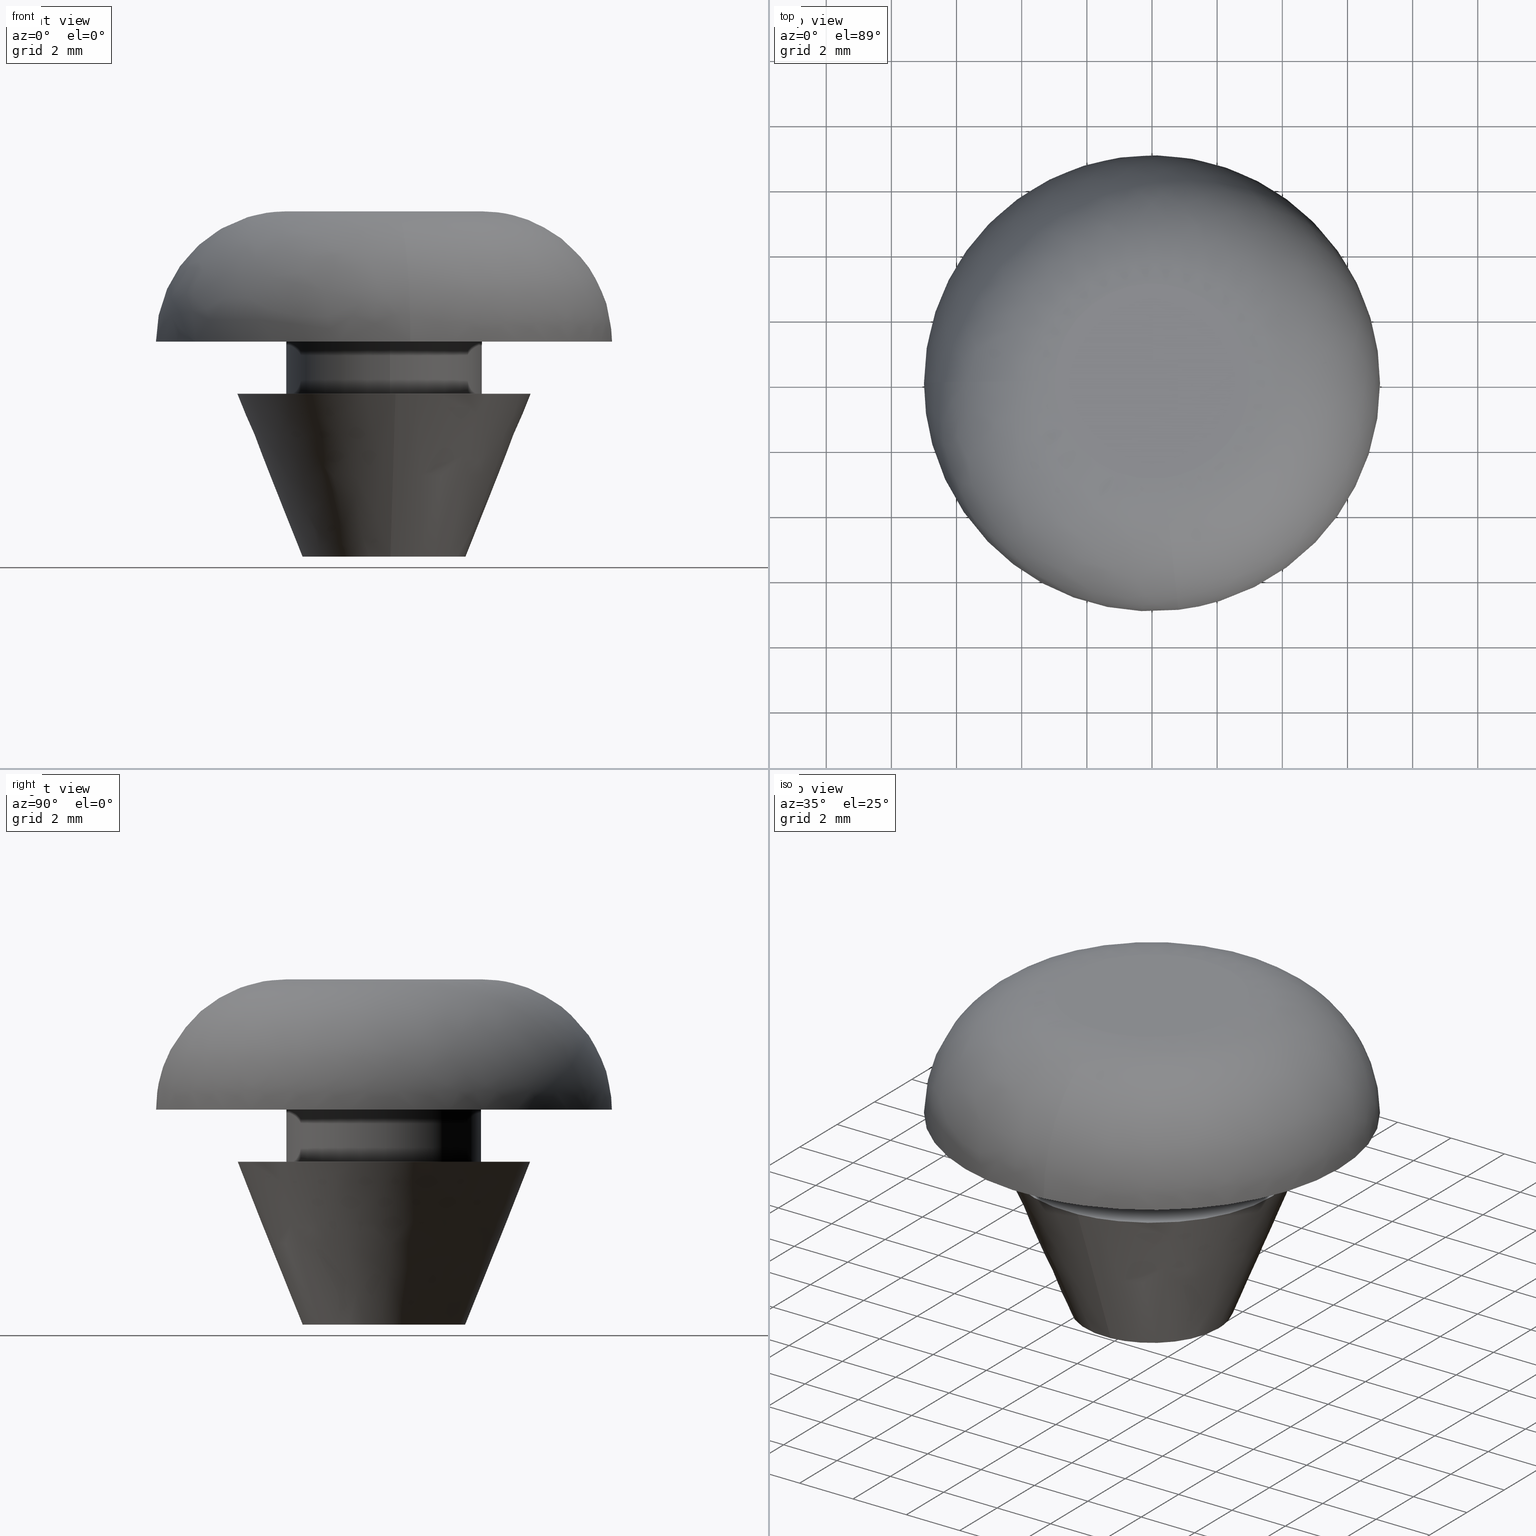
[diagram: canonical four-view strip — front | top / right | iso, engineering-drawing reading convention]
A machine part, canonical four-view strip (front | top / right | iso — engineering-drawing reading convention). The complete STEP part file that produces these views, byte-faithful:
ISO-10303-21;
HEADER;
/****************************************************************
 * Generated by software with PDE/Lib inside                    *
 * PDElib Version 4.4.1-0003, patched  Thursday August 19 11:58 *
 * International Technegroup Inc. (www.iti-oh.com)              *
 ****************************************************************/
FILE_DESCRIPTION((''),'2;1');
FILE_NAME('','2005-12-15T09:45:20',(''),(''),'','CADfix','');
FILE_SCHEMA(('AUTOMOTIVE_DESIGN'));
ENDSEC;
DATA;
#5=APPLICATION_CONTEXT('automotive design');
#6=APPLICATION_PROTOCOL_DEFINITION('Draft International Standard','automotive_design',1998,#5);
#7=PRODUCT_CONTEXT('None',#5,'mechanical');
#8=PRODUCT('cushion','','None',(#7));
#9=PRODUCT_RELATED_PRODUCT_CATEGORY('part','description',(#8));
#10=PRODUCT_DEFINITION_FORMATION('None','None',#8);
#11=PRODUCT_DEFINITION_CONTEXT('part definition',#5,'design');
#12=PRODUCT_DEFINITION('None','None',#10,#11);
#18=(NAMED_UNIT(*)PLANE_ANGLE_UNIT()SI_UNIT($,.RADIAN.));
#19=DIMENSIONAL_EXPONENTS(0.0,0.0,0.0,0.0,0.0,0.0,0.0);
#20=PLANE_ANGLE_MEASURE_WITH_UNIT(PLANE_ANGLE_MEASURE(0.017453292500000),#18);
#24=(CONVERSION_BASED_UNIT('DEGREE',#20)NAMED_UNIT(#19)PLANE_ANGLE_UNIT());
#28=(NAMED_UNIT(*)SI_UNIT($,.STERADIAN.)SOLID_ANGLE_UNIT());
#32=(LENGTH_UNIT()NAMED_UNIT(*)SI_UNIT(.MILLI.,.METRE.));
#34=UNCERTAINTY_MEASURE_WITH_UNIT(LENGTH_MEASURE(0.001000000000000),#32,'DISTANCE_ACCURACY_VALUE','');
#36=(GEOMETRIC_REPRESENTATION_CONTEXT(3)GLOBAL_UNCERTAINTY_ASSIGNED_CONTEXT((#34))GLOBAL_UNIT_ASSIGNED_CONTEXT((#24,#28,#32))REPRESENTATION_CONTEXT('None','None'));
#37=AXIS2_PLACEMENT_3D('',#38,#39,#40);
#38=CARTESIAN_POINT('',(0.0,0.0,0.0));
#39=DIRECTION('',(0.0,0.0,1.0));
#40=DIRECTION('',(1.0,0.0,0.0));
#41=ADVANCED_BREP_SHAPE_REPRESENTATION('',(#37,#915),#36);
#42=PRODUCT_DEFINITION_SHAPE('','',#12);
#43=SHAPE_DEFINITION_REPRESENTATION(#42,#41);
#44=CARTESIAN_POINT('',(0.236068469313517,-1.986019052727332,6.765000000000002));
#45=CARTESIAN_POINT('',(0.179229457275955,-1.992775230897211,6.765000000000001));
#46=CARTESIAN_POINT('',(0.122097079069714,-1.996269596843733,6.765000000000001));
#47=CARTESIAN_POINT('',(-1.874172517774020,-2.118366675913447,6.765000000000002));
#48=CARTESIAN_POINT('',(-1.996269596843733,-0.122097079069714,6.765000000000001));
#49=CARTESIAN_POINT('',(-2.118366675913447,1.874172517774020,6.765000000000002));
#50=CARTESIAN_POINT('',(-0.122097079069714,1.996269596843733,6.765000000000001));
#51=CARTESIAN_POINT('',(0.236068469313517,-1.986019052727332,-0.169125000000000));
#52=CARTESIAN_POINT('',(0.179229457275955,-1.992775230897211,-0.169125000000000));
#53=CARTESIAN_POINT('',(0.122097079069714,-1.996269596843733,-0.169125000000000));
#54=CARTESIAN_POINT('',(-1.874172517774020,-2.118366675913447,-0.169125000000000));
#55=CARTESIAN_POINT('',(-1.996269596843733,-0.122097079069714,-0.169125000000000));
#56=CARTESIAN_POINT('',(-2.118366675913447,1.874172517774020,-0.169125000000000));
#57=CARTESIAN_POINT('',(-0.122097079069714,1.996269596843733,-0.169125000000000));
#65=(BOUNDED_SURFACE()B_SPLINE_SURFACE(2,1,((#44,#51),(#45,#52),(#46,#53),(#47,#54),(#48,#55),(#49,#56),(#50,#57)),.UNSPECIFIED.,.F.,.F.,.U.)B_SPLINE_SURFACE_WITH_KNOTS((3,2,2,3),(2,2),(0.0,0.132548339959391,3.446256838944149,6.759965337928908),(0.0,6.934125000000002),.UNSPECIFIED.)GEOMETRIC_REPRESENTATION_ITEM()RATIONAL_B_SPLINE_SURFACE(((0.977505800795127,0.977505800795127),(0.988284271247462,0.988284271247462),(1.0,1.0),(0.707106781186548,0.707106781186548),(1.0,1.0),(0.707106781186548,0.707106781186548),(1.0,1.0)))REPRESENTATION_ITEM('')SURFACE());
#66=CARTESIAN_POINT('',(0.236068469324997,-1.986019052725968,6.599999999999999));
#67=VERTEX_POINT('',#66);
#68=CARTESIAN_POINT('',(-2.0,0.0,6.600000000000000));
#69=VERTEX_POINT('',#68);
#70=CARTESIAN_POINT('',(0.236068469324997,-1.986019052725968,6.599999999999999));
#71=CARTESIAN_POINT('',(0.118448239315422,-2.000000000000000,6.600000000000000));
#72=CARTESIAN_POINT('',(0.0,-2.0,6.600000000000000));
#73=CARTESIAN_POINT('',(-2.000000000000000,-2.000000000000000,6.599999999999999));
#74=CARTESIAN_POINT('',(-2.0,0.0,6.600000000000000));
#82=(BOUNDED_CURVE()B_SPLINE_CURVE(2,(#70,#71,#72,#73,#74),.UNSPECIFIED.,.F.,.U.)B_SPLINE_CURVE_WITH_KNOTS((3,2,3),(0.229562473513690,0.250000000000000,0.500000000000000),.UNSPECIFIED.)CURVE()GEOMETRIC_REPRESENTATION_ITEM()RATIONAL_B_SPLINE_CURVE((0.956026754184056,0.976055948331358,1.0,0.707106781186548,1.0))REPRESENTATION_ITEM(''));
#83=EDGE_CURVE('',#67,#69,#82,.T.);
#84=ORIENTED_EDGE('',*,*,#83,.F.);
#85=CARTESIAN_POINT('',(0.236068469324997,-1.986019052725968,-1.419714E-017));
#86=VERTEX_POINT('',#85);
#87=CARTESIAN_POINT('',(0.236068469324997,-1.986019052725968,6.599999999999999));
#88=CARTESIAN_POINT('',(0.236068469324997,-1.986019052725968,-1.419714E-017));
#89=QUASI_UNIFORM_CURVE('',1,(#87,#88),.UNSPECIFIED.,.F.,.U.);
#90=EDGE_CURVE('',#67,#86,#89,.T.);
#91=ORIENTED_EDGE('',*,*,#90,.T.);
#92=CARTESIAN_POINT('',(-2.0,0.0,0.0));
#93=VERTEX_POINT('',#92);
#94=CARTESIAN_POINT('',(0.236068469324997,-1.986019052725968,-1.419714E-017));
#95=CARTESIAN_POINT('',(0.118448239315422,-2.000000000000000,0.0));
#96=CARTESIAN_POINT('',(0.0,-2.0,0.0));
#97=CARTESIAN_POINT('',(-2.000000000000000,-2.000000000000000,0.0));
#98=CARTESIAN_POINT('',(-2.0,0.0,0.0));
#106=(BOUNDED_CURVE()B_SPLINE_CURVE(2,(#94,#95,#96,#97,#98),.UNSPECIFIED.,.F.,.U.)B_SPLINE_CURVE_WITH_KNOTS((3,2,3),(0.229562473513690,0.250000000000000,0.500000000000000),.UNSPECIFIED.)CURVE()GEOMETRIC_REPRESENTATION_ITEM()RATIONAL_B_SPLINE_CURVE((0.956026754184056,0.976055948331358,1.0,0.707106781186548,1.0))REPRESENTATION_ITEM(''));
#107=EDGE_CURVE('',#86,#93,#106,.T.);
#108=ORIENTED_EDGE('',*,*,#107,.T.);
#109=CARTESIAN_POINT('',(-0.122096241663616,1.996269648061332,3.747003E-016));
#110=VERTEX_POINT('',#109);
#111=CARTESIAN_POINT('',(-2.0,0.0,0.0));
#112=CARTESIAN_POINT('',(-2.000000000000000,1.881413715211729,0.0));
#113=CARTESIAN_POINT('',(-0.122096241663616,1.996269648061332,3.747003E-016));
#121=(BOUNDED_CURVE()B_SPLINE_CURVE(2,(#111,#112,#113),.UNSPECIFIED.,.F.,.U.)B_SPLINE_CURVE_WITH_KNOTS((3,3),(0.500000000000000,0.739333107003732),.UNSPECIFIED.)CURVE()GEOMETRIC_REPRESENTATION_ITEM()RATIONAL_B_SPLINE_CURVE((1.0,0.719603823684210,0.976072351925414))REPRESENTATION_ITEM(''));
#122=EDGE_CURVE('',#93,#110,#121,.T.);
#123=ORIENTED_EDGE('',*,*,#122,.T.);
#124=CARTESIAN_POINT('',(-0.122096231432988,1.996269648687056,6.600000000000001));
#125=VERTEX_POINT('',#124);
#126=CARTESIAN_POINT('',(-0.122096231432988,1.996269648687056,6.600000000000001));
#127=CARTESIAN_POINT('',(-0.122096241663616,1.996269648061332,3.747003E-016));
#128=QUASI_UNIFORM_CURVE('',1,(#126,#127),.UNSPECIFIED.,.F.,.U.);
#129=EDGE_CURVE('',#125,#110,#128,.T.);
#130=ORIENTED_EDGE('',*,*,#129,.F.);
#131=CARTESIAN_POINT('',(-2.0,0.0,6.600000000000000));
#132=CARTESIAN_POINT('',(-2.000000000000000,1.881413734531771,6.600000000000001));
#133=CARTESIAN_POINT('',(-0.122096231432988,1.996269648687056,6.600000000000001));
#141=(BOUNDED_CURVE()B_SPLINE_CURVE(2,(#131,#132,#133),.UNSPECIFIED.,.F.,.U.)B_SPLINE_CURVE_WITH_KNOTS((3,3),(0.500000000000000,0.739333108772293),.UNSPECIFIED.)CURVE()GEOMETRIC_REPRESENTATION_ITEM()RATIONAL_B_SPLINE_CURVE((1.0,0.719603821612212,0.976072355715781))REPRESENTATION_ITEM(''));
#142=EDGE_CURVE('',#69,#125,#141,.T.);
#143=ORIENTED_EDGE('',*,*,#142,.F.);
#144=EDGE_LOOP('',(#84,#91,#108,#123,#130,#143));
#145=FACE_OUTER_BOUND('',#144,.T.);
#146=ADVANCED_FACE('',(#145),#65,.F.);
#147=CARTESIAN_POINT('',(-0.122097079069714,1.996269596843733,6.765000000000001));
#148=CARTESIAN_POINT('',(1.874172517774020,2.118366675913447,6.765000000000002));
#149=CARTESIAN_POINT('',(1.996269596843733,0.122097079069714,6.765000000000001));
#150=CARTESIAN_POINT('',(2.111572393465055,-1.763086981679002,6.765000000000001));
#151=CARTESIAN_POINT('',(0.236068469313517,-1.986019052727332,6.765000000000002));
#152=CARTESIAN_POINT('',(-0.122097079069714,1.996269596843733,-0.169125000000000));
#153=CARTESIAN_POINT('',(1.874172517774020,2.118366675913447,-0.169125000000000));
#154=CARTESIAN_POINT('',(1.996269596843733,0.122097079069714,-0.169125000000000));
#155=CARTESIAN_POINT('',(2.111572393465055,-1.763086981679002,-0.169125000000000));
#156=CARTESIAN_POINT('',(0.236068469313517,-1.986019052727332,-0.169125000000000));
#164=(BOUNDED_SURFACE()B_SPLINE_SURFACE(2,1,((#147,#152),(#148,#153),(#149,#154),(#150,#155),(#151,#156)),.UNSPECIFIED.,.F.,.F.,.U.)B_SPLINE_SURFACE_WITH_KNOTS((3,2,3),(2,2),(0.0,3.313708498984759,6.494868658010128),(0.0,6.934125000000002),.UNSPECIFIED.)GEOMETRIC_REPRESENTATION_ITEM()RATIONAL_B_SPLINE_SURFACE(((1.0,1.0),(0.707106781186548,0.707106781186548),(1.0,1.0),(0.718822509939086,0.718822509939086),(0.977505800795127,0.977505800795127)))REPRESENTATION_ITEM('')SURFACE());
#165=CARTESIAN_POINT('',(2.0,0.0,6.600000000000000));
#166=VERTEX_POINT('',#165);
#167=CARTESIAN_POINT('',(2.0,0.0,6.600000000000000));
#168=CARTESIAN_POINT('',(2.000000000000000,-1.776349051882054,6.600000000000001));
#169=CARTESIAN_POINT('',(0.236068469324997,-1.986019052725968,6.599999999999999));
#177=(BOUNDED_CURVE()B_SPLINE_CURVE(2,(#167,#168,#169),.UNSPECIFIED.,.F.,.U.)B_SPLINE_CURVE_WITH_KNOTS((3,3),(0.0,0.229562473513690),.UNSPECIFIED.)CURVE()GEOMETRIC_REPRESENTATION_ITEM()RATIONAL_B_SPLINE_CURVE((1.0,0.731050832855189,0.956026754184056))REPRESENTATION_ITEM(''));
#178=EDGE_CURVE('',#166,#67,#177,.T.);
#179=ORIENTED_EDGE('',*,*,#178,.F.);
#180=CARTESIAN_POINT('',(-0.122096231432988,1.996269648687056,6.600000000000001));
#181=CARTESIAN_POINT('',(-0.061104676583794,2.000000000000000,6.600000000000000));
#182=CARTESIAN_POINT('',(0.0,2.0,6.600000000000000));
#183=CARTESIAN_POINT('',(2.000000000000000,2.000000000000000,6.599999999999999));
#184=CARTESIAN_POINT('',(2.0,0.0,6.600000000000000));
#192=(BOUNDED_CURVE()B_SPLINE_CURVE(2,(#180,#181,#182,#183,#184),.UNSPECIFIED.,.F.,.U.)B_SPLINE_CURVE_WITH_KNOTS((3,2,3),(0.739333108772293,0.750000000000000,1.0),.UNSPECIFIED.)CURVE()GEOMETRIC_REPRESENTATION_ITEM()RATIONAL_B_SPLINE_CURVE((0.976072355715781,0.987502959574335,1.0,0.707106781186548,1.0))REPRESENTATION_ITEM(''));
#193=EDGE_CURVE('',#125,#166,#192,.T.);
#194=ORIENTED_EDGE('',*,*,#193,.F.);
#195=ORIENTED_EDGE('',*,*,#129,.T.);
#196=CARTESIAN_POINT('',(2.0,0.0,0.0));
#197=VERTEX_POINT('',#196);
#198=CARTESIAN_POINT('',(-0.122096241663616,1.996269648061332,3.747003E-016));
#199=CARTESIAN_POINT('',(-0.061104686843107,2.0,0.0));
#200=CARTESIAN_POINT('',(0.0,2.0,0.0));
#201=CARTESIAN_POINT('',(2.000000000000000,2.000000000000000,0.0));
#202=CARTESIAN_POINT('',(2.0,0.0,0.0));
#210=(BOUNDED_CURVE()B_SPLINE_CURVE(2,(#198,#199,#200,#201,#202),.UNSPECIFIED.,.F.,.U.)B_SPLINE_CURVE_WITH_KNOTS((3,2,3),(0.739333107003731,0.750000000000000,1.0),.UNSPECIFIED.)CURVE()GEOMETRIC_REPRESENTATION_ITEM()RATIONAL_B_SPLINE_CURVE((0.976072351925413,0.987502957502337,1.0,0.707106781186548,1.0))REPRESENTATION_ITEM(''));
#211=EDGE_CURVE('',#110,#197,#210,.T.);
#212=ORIENTED_EDGE('',*,*,#211,.T.);
#213=CARTESIAN_POINT('',(2.0,0.0,0.0));
#214=CARTESIAN_POINT('',(2.000000000000000,-1.776349051882054,0.0));
#215=CARTESIAN_POINT('',(0.236068469324997,-1.986019052725968,-1.419714E-017));
#223=(BOUNDED_CURVE()B_SPLINE_CURVE(2,(#213,#214,#215),.UNSPECIFIED.,.F.,.U.)B_SPLINE_CURVE_WITH_KNOTS((3,3),(0.0,0.229562473513690),.UNSPECIFIED.)CURVE()GEOMETRIC_REPRESENTATION_ITEM()RATIONAL_B_SPLINE_CURVE((1.0,0.731050832855189,0.956026754184056))REPRESENTATION_ITEM(''));
#224=EDGE_CURVE('',#197,#86,#223,.T.);
#225=ORIENTED_EDGE('',*,*,#224,.T.);
#226=ORIENTED_EDGE('',*,*,#90,.F.);
#227=EDGE_LOOP('',(#179,#194,#195,#212,#225,#226));
#228=FACE_OUTER_BOUND('',#227,.T.);
#229=ADVANCED_FACE('',(#228),#164,.F.);
#230=CARTESIAN_POINT('',(-0.398312307860684,2.973773597521193,6.640000000000002));
#231=CARTESIAN_POINT('',(-0.376145177737272,2.976408496954872,6.640000000000002));
#232=CARTESIAN_POINT('',(-0.268844185913933,2.989162846345817,6.640000000000001));
#233=CARTESIAN_POINT('',(-0.183145618604571,2.994404395265600,6.640000000000001));
#234=CARTESIAN_POINT('',(2.811258776661029,3.177550013870171,6.640000000000001));
#235=CARTESIAN_POINT('',(2.994404395265600,0.183145618604571,6.640000000000001));
#236=CARTESIAN_POINT('',(3.177550013870171,-2.811258776661029,6.640000000000001));
#237=CARTESIAN_POINT('',(0.161610626708117,-2.995721531794908,6.640000000000002));
#238=CARTESIAN_POINT('',(0.140203555703779,-2.997030844347278,6.640000000000000));
#239=CARTESIAN_POINT('',(-0.398312307860684,2.973773597521193,4.959000000000001));
#240=CARTESIAN_POINT('',(-0.376145177737272,2.976408496954872,4.959000000000000));
#241=CARTESIAN_POINT('',(-0.268844185913933,2.989162846345817,4.958999999999999));
#242=CARTESIAN_POINT('',(-0.183145618604571,2.994404395265600,4.958999999999999));
#243=CARTESIAN_POINT('',(2.811258776661029,3.177550013870171,4.959000000000000));
#244=CARTESIAN_POINT('',(2.994404395265600,0.183145618604571,4.958999999999999));
#245=CARTESIAN_POINT('',(3.177550013870171,-2.811258776661029,4.959000000000000));
#246=CARTESIAN_POINT('',(0.161610626708117,-2.995721531794908,4.959000000000001));
#247=CARTESIAN_POINT('',(0.140203555703779,-2.997030844347278,4.958999999999997));
#255=(BOUNDED_SURFACE()B_SPLINE_SURFACE(2,1,((#230,#239),(#231,#240),(#232,#241),(#233,#242),(#234,#243),(#235,#244),(#236,#245),(#237,#246),(#238,#247)),.UNSPECIFIED.,.F.,.F.,.U.)B_SPLINE_SURFACE_WITH_KNOTS((3,1,2,2,1,3),(2,2),(0.0,0.050699388622757,0.249521898561843,5.220084647038982,10.190647395516120,10.241352359452330),(0.0,1.0),.UNSPECIFIED.)GEOMETRIC_REPRESENTATION_ITEM()RATIONAL_B_SPLINE_SURFACE(((0.972008818965562,0.972008818965562),(0.974757309880344,0.974757309880344),(0.988284271247462,0.988284271247462),(1.0,1.0),(0.707106781186548,0.707106781186548),(1.0,1.0),(0.707106781186548,0.707106781186548),(1.002987818653259,1.002987818653259),(1.005975637306519,1.005975637306519)))REPRESENTATION_ITEM('')SURFACE());
#256=CARTESIAN_POINT('',(-0.354102375368443,2.979028618150271,6.599999999999998));
#257=VERTEX_POINT('',#256);
#258=CARTESIAN_POINT('',(3.0,0.0,6.600000000000000));
#259=VERTEX_POINT('',#258);
#260=CARTESIAN_POINT('',(-0.354102375368443,2.979028618150271,6.599999999999998));
#261=CARTESIAN_POINT('',(-0.177672026879968,3.000000000000001,6.599999999999999));
#262=CARTESIAN_POINT('',(0.0,3.0,6.600000000000000));
#263=CARTESIAN_POINT('',(3.0,3.0,6.599999999999999));
#264=CARTESIAN_POINT('',(3.0,0.0,6.600000000000000));
#272=(BOUNDED_CURVE()B_SPLINE_CURVE(2,(#260,#261,#262,#263,#264),.UNSPECIFIED.,.F.,.U.)B_SPLINE_CURVE_WITH_KNOTS((3,2,3),(0.229562510799462,0.250000000000000,0.500000000000000),.UNSPECIFIED.)CURVE()GEOMETRIC_REPRESENTATION_ITEM()RATIONAL_B_SPLINE_CURVE((0.956026827265707,0.976055992014357,1.0,0.707106781186548,1.0))REPRESENTATION_ITEM(''));
#273=EDGE_CURVE('',#257,#259,#272,.T.);
#274=ORIENTED_EDGE('',*,*,#273,.T.);
#275=CARTESIAN_POINT('',(0.183141187636564,-2.994404666268633,6.599999999999952));
#276=VERTEX_POINT('',#275);
#277=CARTESIAN_POINT('',(3.0,0.0,6.600000000000000));
#278=CARTESIAN_POINT('',(3.000000000000000,-2.822122384550928,6.599999999999999));
#279=CARTESIAN_POINT('',(0.183141187636564,-2.994404666268632,6.599999999999952));
#287=(BOUNDED_CURVE()B_SPLINE_CURVE(2,(#277,#278,#279),.UNSPECIFIED.,.F.,.U.)B_SPLINE_CURVE_WITH_KNOTS((3,3),(0.500000000000000,0.739333217568020),.UNSPECIFIED.)CURVE()GEOMETRIC_REPRESENTATION_ITEM()RATIONAL_B_SPLINE_CURVE((1.0,0.719603694150089,0.976072588886144))REPRESENTATION_ITEM(''));
#288=EDGE_CURVE('',#259,#276,#287,.T.);
#289=ORIENTED_EDGE('',*,*,#288,.T.);
#290=CARTESIAN_POINT('',(0.183141240990780,-2.994404663005506,5.0));
#291=VERTEX_POINT('',#290);
#292=CARTESIAN_POINT('',(0.183141187636564,-2.994404666268633,6.599999999999952));
#293=CARTESIAN_POINT('',(0.183141240990780,-2.994404663005506,5.0));
#294=QUASI_UNIFORM_CURVE('',1,(#292,#293),.UNSPECIFIED.,.F.,.U.);
#295=EDGE_CURVE('',#276,#291,#294,.T.);
#296=ORIENTED_EDGE('',*,*,#295,.T.);
#297=CARTESIAN_POINT('',(3.0,0.0,5.0));
#298=VERTEX_POINT('',#297);
#299=CARTESIAN_POINT('',(3.0,0.0,5.0));
#300=CARTESIAN_POINT('',(3.000000000000000,-2.822122334172474,5.0));
#301=CARTESIAN_POINT('',(0.183141240990780,-2.994404663005506,5.0));
#309=(BOUNDED_CURVE()B_SPLINE_CURVE(2,(#299,#300,#301),.UNSPECIFIED.,.F.,.U.)B_SPLINE_CURVE_WITH_KNOTS((3,3),(0.500000000000000,0.739333214493585),.UNSPECIFIED.)CURVE()GEOMETRIC_REPRESENTATION_ITEM()RATIONAL_B_SPLINE_CURVE((1.0,0.719603697752014,0.976072582297030))REPRESENTATION_ITEM(''));
#310=EDGE_CURVE('',#298,#291,#309,.T.);
#311=ORIENTED_EDGE('',*,*,#310,.F.);
#312=CARTESIAN_POINT('',(-0.354102379321857,2.979028617680349,5.0));
#313=VERTEX_POINT('',#312);
#314=CARTESIAN_POINT('',(-0.354102379321857,2.979028617680349,5.0));
#315=CARTESIAN_POINT('',(-0.177672030875177,3.0,4.999999999999999));
#316=CARTESIAN_POINT('',(0.0,3.0,5.0));
#317=CARTESIAN_POINT('',(3.0,3.0,5.000000000000001));
#318=CARTESIAN_POINT('',(3.0,0.0,5.0));
#326=(BOUNDED_CURVE()B_SPLINE_CURVE(2,(#314,#315,#316,#317,#318),.UNSPECIFIED.,.F.,.U.)B_SPLINE_CURVE_WITH_KNOTS((3,2,3),(0.229562510350900,0.250000000000000,0.500000000000000),.UNSPECIFIED.)CURVE()GEOMETRIC_REPRESENTATION_ITEM()RATIONAL_B_SPLINE_CURVE((0.956026826386506,0.976055991488833,1.0,0.707106781186548,1.0))REPRESENTATION_ITEM(''));
#327=EDGE_CURVE('',#313,#298,#326,.T.);
#328=ORIENTED_EDGE('',*,*,#327,.F.);
#329=CARTESIAN_POINT('',(-0.354102375368443,2.979028618150271,6.599999999999998));
#330=CARTESIAN_POINT('',(-0.354102379321857,2.979028617680349,5.0));
#331=QUASI_UNIFORM_CURVE('',1,(#329,#330),.UNSPECIFIED.,.F.,.U.);
#332=EDGE_CURVE('',#257,#313,#331,.T.);
#333=ORIENTED_EDGE('',*,*,#332,.F.);
#334=EDGE_LOOP('',(#274,#289,#296,#311,#328,#333));
#335=FACE_OUTER_BOUND('',#334,.T.);
#336=ADVANCED_FACE('',(#335),#255,.T.);
#337=CARTESIAN_POINT('',(0.183145618604571,-2.994404395265600,6.640000000000001));
#338=CARTESIAN_POINT('',(-2.811258776661029,-3.177550013870171,6.640000000000001));
#339=CARTESIAN_POINT('',(-2.994404395265600,-0.183145618604571,6.640000000000001));
#340=CARTESIAN_POINT('',(-3.167358590197582,2.644630472518504,6.640000000000000));
#341=CARTESIAN_POINT('',(-0.354102703970275,2.979028579091000,6.640000000000002));
#342=CARTESIAN_POINT('',(0.183145618604571,-2.994404395265600,4.958999999999999));
#343=CARTESIAN_POINT('',(-2.811258776661029,-3.177550013870171,4.959000000000000));
#344=CARTESIAN_POINT('',(-2.994404395265600,-0.183145618604571,4.958999999999999));
#345=CARTESIAN_POINT('',(-3.167358590197582,2.644630472518504,4.958999999999999));
#346=CARTESIAN_POINT('',(-0.354102703970275,2.979028579091000,4.959000000000000));
#354=(BOUNDED_SURFACE()B_SPLINE_SURFACE(2,1,((#337,#342),(#338,#343),(#339,#344),(#340,#345),(#341,#346)),.UNSPECIFIED.,.F.,.F.,.U.)B_SPLINE_SURFACE_WITH_KNOTS((3,2,3),(2,2),(0.0,4.970562748477139,9.742302987015194),(0.0,1.0),.UNSPECIFIED.)GEOMETRIC_REPRESENTATION_ITEM()RATIONAL_B_SPLINE_SURFACE(((1.0,1.0),(0.707106781186548,0.707106781186548),(1.0,1.0),(0.718822509939086,0.718822509939086),(0.977505800795127,0.977505800795127)))REPRESENTATION_ITEM('')SURFACE());
#355=CARTESIAN_POINT('',(-3.0,0.0,6.600000000000000));
#356=VERTEX_POINT('',#355);
#357=CARTESIAN_POINT('',(-3.0,0.0,6.600000000000000));
#358=CARTESIAN_POINT('',(-3.000000000000000,2.664524169812923,6.600000000000000));
#359=CARTESIAN_POINT('',(-0.354102375368443,2.979028618150271,6.599999999999998));
#367=(BOUNDED_CURVE()B_SPLINE_CURVE(2,(#357,#358,#359),.UNSPECIFIED.,.F.,.U.)B_SPLINE_CURVE_WITH_KNOTS((3,3),(0.0,0.229562510799462),.UNSPECIFIED.)CURVE()GEOMETRIC_REPRESENTATION_ITEM()RATIONAL_B_SPLINE_CURVE((1.0,0.731050789172191,0.956026827265707))REPRESENTATION_ITEM(''));
#368=EDGE_CURVE('',#356,#257,#367,.T.);
#369=ORIENTED_EDGE('',*,*,#368,.T.);
#370=ORIENTED_EDGE('',*,*,#332,.T.);
#371=CARTESIAN_POINT('',(-3.0,0.0,5.0));
#372=VERTEX_POINT('',#371);
#373=CARTESIAN_POINT('',(-3.0,0.0,5.0));
#374=CARTESIAN_POINT('',(-3.000000000000000,2.664524162691058,4.999999999999999));
#375=CARTESIAN_POINT('',(-0.354102379321857,2.979028617680350,5.0));
#383=(BOUNDED_CURVE()B_SPLINE_CURVE(2,(#373,#374,#375),.UNSPECIFIED.,.F.,.U.)B_SPLINE_CURVE_WITH_KNOTS((3,3),(0.0,0.229562510350900),.UNSPECIFIED.)CURVE()GEOMETRIC_REPRESENTATION_ITEM()RATIONAL_B_SPLINE_CURVE((1.0,0.731050789697714,0.956026826386506))REPRESENTATION_ITEM(''));
#384=EDGE_CURVE('',#372,#313,#383,.T.);
#385=ORIENTED_EDGE('',*,*,#384,.F.);
#386=CARTESIAN_POINT('',(0.183141240990780,-2.994404663005506,5.0));
#387=CARTESIAN_POINT('',(0.091656094951915,-3.000000000000000,5.0));
#388=CARTESIAN_POINT('',(0.0,-3.0,5.0));
#389=CARTESIAN_POINT('',(-3.0,-3.0,5.000000000000001));
#390=CARTESIAN_POINT('',(-3.0,0.0,5.0));
#398=(BOUNDED_CURVE()B_SPLINE_CURVE(2,(#386,#387,#388,#389,#390),.UNSPECIFIED.,.F.,.U.)B_SPLINE_CURVE_WITH_KNOTS((3,2,3),(0.739333214493585,0.750000000000000,1.0),.UNSPECIFIED.)CURVE()GEOMETRIC_REPRESENTATION_ITEM()RATIONAL_B_SPLINE_CURVE((0.976072582297030,0.987503083434533,1.0,0.707106781186548,1.0))REPRESENTATION_ITEM(''));
#399=EDGE_CURVE('',#291,#372,#398,.T.);
#400=ORIENTED_EDGE('',*,*,#399,.F.);
#401=ORIENTED_EDGE('',*,*,#295,.F.);
#402=CARTESIAN_POINT('',(0.183141187636564,-2.994404666268632,6.599999999999952));
#403=CARTESIAN_POINT('',(0.091656068200012,-3.000000000000000,6.600000000000000));
#404=CARTESIAN_POINT('',(0.0,-3.0,6.600000000000000));
#405=CARTESIAN_POINT('',(-3.0,-3.0,6.599999999999999));
#406=CARTESIAN_POINT('',(-3.0,0.0,6.600000000000000));
#414=(BOUNDED_CURVE()B_SPLINE_CURVE(2,(#402,#403,#404,#405,#406),.UNSPECIFIED.,.F.,.U.)B_SPLINE_CURVE_WITH_KNOTS((3,2,3),(0.739333217568020,0.750000000000000,1.0),.UNSPECIFIED.)CURVE()GEOMETRIC_REPRESENTATION_ITEM()RATIONAL_B_SPLINE_CURVE((0.976072588886144,0.987503087036458,1.0,0.707106781186548,1.0))REPRESENTATION_ITEM(''));
#415=EDGE_CURVE('',#276,#356,#414,.T.);
#416=ORIENTED_EDGE('',*,*,#415,.T.);
#417=EDGE_LOOP('',(#369,#370,#385,#400,#401,#416));
#418=FACE_OUTER_BOUND('',#417,.T.);
#419=ADVANCED_FACE('',(#418),#354,.T.);
#420=CARTESIAN_POINT('',(-0.192224784533222,2.442447467646163,-0.125000000000000));
#421=CARTESIAN_POINT('',(-2.634672252179385,2.250222683112942,-0.125000000000000));
#422=CARTESIAN_POINT('',(-2.442447467646163,-0.192224784533222,-0.125000000000000));
#423=CARTESIAN_POINT('',(-2.250222683112942,-2.634672252179385,-0.125000000000000));
#424=CARTESIAN_POINT('',(0.192224784533222,-2.442447467646163,-0.125000000000000));
#425=CARTESIAN_POINT('',(-0.357086959431357,4.537220015152898,5.128125000000001));
#426=CARTESIAN_POINT('',(-4.894306974584256,4.180133055721541,5.128125000000001));
#427=CARTESIAN_POINT('',(-4.537220015152898,-0.357086959431357,5.128125000000001));
#428=CARTESIAN_POINT('',(-4.180133055721541,-4.894306974584256,5.128125000000001));
#429=CARTESIAN_POINT('',(0.357086959431357,-4.537220015152898,5.128125000000001));
#437=(BOUNDED_SURFACE()B_SPLINE_SURFACE(2,1,((#420,#425),(#421,#426),(#422,#427),(#423,#428),(#424,#429)),.UNSPECIFIED.,.F.,.F.,.U.)B_SPLINE_SURFACE_WITH_KNOTS((3,2,3),(2,2),(0.0,7.540757903002195,15.081515806004390),(0.0,5.657788775495690),.UNSPECIFIED.)GEOMETRIC_REPRESENTATION_ITEM()RATIONAL_B_SPLINE_SURFACE(((1.0,1.0),(0.707106781186548,0.707106781186548),(1.0,1.0),(0.707106781186548,0.707106781186548),(1.0,1.0)))REPRESENTATION_ITEM('')SURFACE());
#438=CARTESIAN_POINT('',(-2.500000000000000,0.0,0.0));
#439=VERTEX_POINT('',#438);
#440=CARTESIAN_POINT('',(-0.196147739338507,2.492293334332739,3.503475E-012));
#441=VERTEX_POINT('',#440);
#442=CARTESIAN_POINT('',(-2.500000000000000,0.0,0.0));
#443=CARTESIAN_POINT('',(-2.500000000000000,2.310976229110576,0.0));
#444=CARTESIAN_POINT('',(-0.196147739338507,2.492293334332738,3.503475E-012));
#452=(BOUNDED_CURVE()B_SPLINE_CURVE(2,(#442,#443,#444),.UNSPECIFIED.,.F.,.U.)B_SPLINE_CURVE_WITH_KNOTS((3,3),(0.0,0.236331300630183),.UNSPECIFIED.)CURVE()GEOMETRIC_REPRESENTATION_ITEM()RATIONAL_B_SPLINE_CURVE((1.0,0.723120658608224,0.969723356166423))REPRESENTATION_ITEM(''));
#453=EDGE_CURVE('',#439,#441,#452,.T.);
#454=ORIENTED_EDGE('',*,*,#453,.F.);
#455=CARTESIAN_POINT('',(0.196147739338507,-2.492293334332739,3.503475E-012));
#456=VERTEX_POINT('',#455);
#457=CARTESIAN_POINT('',(0.196147739338507,-2.492293334332739,3.503475E-012));
#458=CARTESIAN_POINT('',(0.098225267538045,-2.500000000000000,0.0));
#459=CARTESIAN_POINT('',(0.0,-2.500000000000000,0.0));
#460=CARTESIAN_POINT('',(-2.500000000000000,-2.500000000000000,0.0));
#461=CARTESIAN_POINT('',(-2.500000000000000,0.0,0.0));
#469=(BOUNDED_CURVE()B_SPLINE_CURVE(2,(#457,#458,#459,#460,#461),.UNSPECIFIED.,.F.,.U.)B_SPLINE_CURVE_WITH_KNOTS((3,2,3),(0.736331300630183,0.750000000000000,1.0),.UNSPECIFIED.)CURVE()GEOMETRIC_REPRESENTATION_ITEM()RATIONAL_B_SPLINE_CURVE((0.969723356166423,0.983986122578324,1.0,0.707106781186548,1.0))REPRESENTATION_ITEM(''));
#470=EDGE_CURVE('',#456,#439,#469,.T.);
#471=ORIENTED_EDGE('',*,*,#470,.F.);
#472=CARTESIAN_POINT('',(0.353065930785465,-4.486128001799032,5.000000000001885));
#473=VERTEX_POINT('',#472);
#474=CARTESIAN_POINT('',(0.196147739338507,-2.492293334332739,3.503475E-012));
#475=CARTESIAN_POINT('',(0.353065930785465,-4.486128001799032,5.000000000001885));
#476=QUASI_UNIFORM_CURVE('',1,(#474,#475),.UNSPECIFIED.,.F.,.U.);
#477=EDGE_CURVE('',#456,#473,#476,.T.);
#478=ORIENTED_EDGE('',*,*,#477,.T.);
#479=CARTESIAN_POINT('',(-4.500000000000000,0.0,5.0));
#480=VERTEX_POINT('',#479);
#481=CARTESIAN_POINT('',(0.353065930785465,-4.486128001799032,5.000000000001885));
#482=CARTESIAN_POINT('',(0.176805481544663,-4.499999999999999,5.0));
#483=CARTESIAN_POINT('',(0.0,-4.500000000000000,5.0));
#484=CARTESIAN_POINT('',(-4.500000000000000,-4.500000000000000,4.999999999999999));
#485=CARTESIAN_POINT('',(-4.500000000000000,0.0,5.0));
#493=(BOUNDED_CURVE()B_SPLINE_CURVE(2,(#481,#482,#483,#484,#485),.UNSPECIFIED.,.F.,.U.)B_SPLINE_CURVE_WITH_KNOTS((3,2,3),(0.736331300631995,0.750000000000000,1.0),.UNSPECIFIED.)CURVE()GEOMETRIC_REPRESENTATION_ITEM()RATIONAL_B_SPLINE_CURVE((0.969723356170204,0.983986122580446,1.0,0.707106781186547,1.0))REPRESENTATION_ITEM(''));
#494=EDGE_CURVE('',#473,#480,#493,.T.);
#495=ORIENTED_EDGE('',*,*,#494,.T.);
#496=CARTESIAN_POINT('',(-0.353065930785465,4.486128001799031,5.000000000001885));
#497=VERTEX_POINT('',#496);
#498=CARTESIAN_POINT('',(-4.500000000000000,0.0,5.0));
#499=CARTESIAN_POINT('',(-4.500000000000002,4.159757212443140,5.000000000000001));
#500=CARTESIAN_POINT('',(-0.353065930785465,4.486128001799031,5.000000000001886));
#508=(BOUNDED_CURVE()B_SPLINE_CURVE(2,(#498,#499,#500),.UNSPECIFIED.,.F.,.U.)B_SPLINE_CURVE_WITH_KNOTS((3,3),(0.0,0.236331300631995),.UNSPECIFIED.)CURVE()GEOMETRIC_REPRESENTATION_ITEM()RATIONAL_B_SPLINE_CURVE((1.0,0.723120658606101,0.969723356170204))REPRESENTATION_ITEM(''));
#509=EDGE_CURVE('',#480,#497,#508,.T.);
#510=ORIENTED_EDGE('',*,*,#509,.T.);
#511=CARTESIAN_POINT('',(-0.196147739338507,2.492293334332739,3.503475E-012));
#512=CARTESIAN_POINT('',(-0.353065930785465,4.486128001799031,5.000000000001885));
#513=QUASI_UNIFORM_CURVE('',1,(#511,#512),.UNSPECIFIED.,.F.,.U.);
#514=EDGE_CURVE('',#441,#497,#513,.T.);
#515=ORIENTED_EDGE('',*,*,#514,.F.);
#516=EDGE_LOOP('',(#454,#471,#478,#495,#510,#515));
#517=FACE_OUTER_BOUND('',#516,.T.);
#518=ADVANCED_FACE('',(#517),#437,.T.);
#519=CARTESIAN_POINT('',(0.192224784533222,-2.442447467646163,-0.125000000000000));
#520=CARTESIAN_POINT('',(2.634672252179385,-2.250222683112942,-0.125000000000000));
#521=CARTESIAN_POINT('',(2.442447467646163,0.192224784533222,-0.125000000000000));
#522=CARTESIAN_POINT('',(2.250222683112942,2.634672252179385,-0.125000000000000));
#523=CARTESIAN_POINT('',(-0.192224784533222,2.442447467646163,-0.125000000000000));
#524=CARTESIAN_POINT('',(0.357086959431357,-4.537220015152898,5.128125000000001));
#525=CARTESIAN_POINT('',(4.894306974584256,-4.180133055721541,5.128125000000001));
#526=CARTESIAN_POINT('',(4.537220015152898,0.357086959431357,5.128125000000001));
#527=CARTESIAN_POINT('',(4.180133055721541,4.894306974584256,5.128125000000001));
#528=CARTESIAN_POINT('',(-0.357086959431357,4.537220015152898,5.128125000000001));
#536=(BOUNDED_SURFACE()B_SPLINE_SURFACE(2,1,((#519,#524),(#520,#525),(#521,#526),(#522,#527),(#523,#528)),.UNSPECIFIED.,.F.,.F.,.U.)B_SPLINE_SURFACE_WITH_KNOTS((3,2,3),(2,2),(0.0,7.540757903002195,15.081515806004390),(0.0,5.657788775495690),.UNSPECIFIED.)GEOMETRIC_REPRESENTATION_ITEM()RATIONAL_B_SPLINE_SURFACE(((1.0,1.0),(0.707106781186548,0.707106781186548),(1.0,1.0),(0.707106781186548,0.707106781186548),(1.0,1.0)))REPRESENTATION_ITEM('')SURFACE());
#537=CARTESIAN_POINT('',(2.500000000000000,0.0,0.0));
#538=VERTEX_POINT('',#537);
#539=CARTESIAN_POINT('',(-0.196147739338507,2.492293334332739,3.503475E-012));
#540=CARTESIAN_POINT('',(-0.098225267538045,2.500000000000000,0.0));
#541=CARTESIAN_POINT('',(0.0,2.500000000000000,0.0));
#542=CARTESIAN_POINT('',(2.500000000000000,2.500000000000000,0.0));
#543=CARTESIAN_POINT('',(2.500000000000000,0.0,0.0));
#551=(BOUNDED_CURVE()B_SPLINE_CURVE(2,(#539,#540,#541,#542,#543),.UNSPECIFIED.,.F.,.U.)B_SPLINE_CURVE_WITH_KNOTS((3,2,3),(0.236331300630183,0.250000000000000,0.500000000000000),.UNSPECIFIED.)CURVE()GEOMETRIC_REPRESENTATION_ITEM()RATIONAL_B_SPLINE_CURVE((0.969723356166423,0.983986122578324,1.0,0.707106781186548,1.0))REPRESENTATION_ITEM(''));
#552=EDGE_CURVE('',#441,#538,#551,.T.);
#553=ORIENTED_EDGE('',*,*,#552,.F.);
#554=ORIENTED_EDGE('',*,*,#514,.T.);
#555=CARTESIAN_POINT('',(4.500000000000000,0.0,5.0));
#556=VERTEX_POINT('',#555);
#557=CARTESIAN_POINT('',(-0.353065930785465,4.486128001799031,5.000000000001886));
#558=CARTESIAN_POINT('',(-0.176805481544663,4.500000000000001,5.0));
#559=CARTESIAN_POINT('',(0.0,4.500000000000000,5.0));
#560=CARTESIAN_POINT('',(4.500000000000000,4.500000000000000,4.999999999999999));
#561=CARTESIAN_POINT('',(4.500000000000000,0.0,5.0));
#569=(BOUNDED_CURVE()B_SPLINE_CURVE(2,(#557,#558,#559,#560,#561),.UNSPECIFIED.,.F.,.U.)B_SPLINE_CURVE_WITH_KNOTS((3,2,3),(0.236331300631995,0.250000000000000,0.500000000000000),.UNSPECIFIED.)CURVE()GEOMETRIC_REPRESENTATION_ITEM()RATIONAL_B_SPLINE_CURVE((0.969723356170204,0.983986122580446,1.0,0.707106781186547,1.0))REPRESENTATION_ITEM(''));
#570=EDGE_CURVE('',#497,#556,#569,.T.);
#571=ORIENTED_EDGE('',*,*,#570,.T.);
#572=CARTESIAN_POINT('',(4.500000000000000,0.0,5.0));
#573=CARTESIAN_POINT('',(4.500000000000001,-4.159757212443157,4.999999999999999));
#574=CARTESIAN_POINT('',(0.353065930785465,-4.486128001799032,5.000000000001885));
#582=(BOUNDED_CURVE()B_SPLINE_CURVE(2,(#572,#573,#574),.UNSPECIFIED.,.F.,.U.)B_SPLINE_CURVE_WITH_KNOTS((3,3),(0.500000000000000,0.736331300631996),.UNSPECIFIED.)CURVE()GEOMETRIC_REPRESENTATION_ITEM()RATIONAL_B_SPLINE_CURVE((1.0,0.723120658606100,0.969723356170206))REPRESENTATION_ITEM(''));
#583=EDGE_CURVE('',#556,#473,#582,.T.);
#584=ORIENTED_EDGE('',*,*,#583,.T.);
#585=ORIENTED_EDGE('',*,*,#477,.F.);
#586=CARTESIAN_POINT('',(2.500000000000000,0.0,0.0));
#587=CARTESIAN_POINT('',(2.500000000000000,-2.310976229110586,0.0));
#588=CARTESIAN_POINT('',(0.196147739338507,-2.492293334332738,3.503475E-012));
#596=(BOUNDED_CURVE()B_SPLINE_CURVE(2,(#586,#587,#588),.UNSPECIFIED.,.F.,.U.)B_SPLINE_CURVE_WITH_KNOTS((3,3),(0.500000000000000,0.736331300630184),.UNSPECIFIED.)CURVE()GEOMETRIC_REPRESENTATION_ITEM()RATIONAL_B_SPLINE_CURVE((1.0,0.723120658608223,0.969723356166425))REPRESENTATION_ITEM(''));
#597=EDGE_CURVE('',#538,#456,#596,.T.);
#598=ORIENTED_EDGE('',*,*,#597,.F.);
#599=EDGE_LOOP('',(#553,#554,#571,#584,#585,#598));
#600=FACE_OUTER_BOUND('',#599,.T.);
#601=ADVANCED_FACE('',(#600),#536,.T.);
#602=CARTESIAN_POINT('',(0.806954198958936,-6.942044220110153,6.300712580109015));
#603=CARTESIAN_POINT('',(0.808248821267288,-6.953181562631603,6.450146263777079));
#604=CARTESIAN_POINT('',(0.808248821267288,-6.953181562631602,6.600000000000001));
#605=CARTESIAN_POINT('',(0.808248821267288,-6.953181562631604,9.364321978561879));
#606=CARTESIAN_POINT('',(0.509683272658590,-4.384689765058708,10.341657386773946));
#607=CARTESIAN_POINT('',(0.412667969040947,-3.550089079406459,10.659230836911801));
#608=CARTESIAN_POINT('',(0.309289451756118,-2.660747107673029,10.587071919673685));
#609=CARTESIAN_POINT('',(0.404830924571384,-6.988787665481204,6.300712580109016));
#610=CARTESIAN_POINT('',(0.405480407710251,-6.999999999999999,6.450146263777080));
#611=CARTESIAN_POINT('',(0.405480407710251,-7.0,6.599999999999999));
#612=CARTESIAN_POINT('',(0.405480407710251,-7.000000000000003,9.364321978561881));
#613=CARTESIAN_POINT('',(0.255696730713023,-4.414213562373094,10.341657386773941));
#614=CARTESIAN_POINT('',(0.207026316565884,-3.573993190311556,10.659230836911798));
#615=CARTESIAN_POINT('',(0.155163620037099,-2.678662938101394,10.587071919673681));
#616=CARTESIAN_POINT('',(0.0,-6.988787665481205,6.300712580109016));
#617=CARTESIAN_POINT('',(0.0,-7.0,6.450146263777079));
#618=CARTESIAN_POINT('',(0.0,-7.0,6.600000000000000));
#619=CARTESIAN_POINT('',(0.0,-7.000000000000002,9.364321978561881));
#620=CARTESIAN_POINT('',(0.0,-4.414213562373095,10.341657386773941));
#621=CARTESIAN_POINT('',(0.0,-3.573993190311557,10.659230836911798));
#622=CARTESIAN_POINT('',(0.0,-2.678662938101394,10.587071919673681));
#623=CARTESIAN_POINT('',(-6.988787665481203,-6.988787665481203,6.300712580109015));
#624=CARTESIAN_POINT('',(-6.999999999999998,-6.999999999999998,6.450146263777079));
#625=CARTESIAN_POINT('',(-6.999999999999999,-6.999999999999999,6.599999999999999));
#626=CARTESIAN_POINT('',(-7.0,-7.0,9.364321978561879));
#627=CARTESIAN_POINT('',(-4.414213562373095,-4.414213562373095,10.341657386773942));
#628=CARTESIAN_POINT('',(-3.573993190311556,-3.573993190311556,10.659230836911799));
#629=CARTESIAN_POINT('',(-2.678662938101394,-2.678662938101394,10.587071919673681));
#630=CARTESIAN_POINT('',(-6.988787665481205,0.0,6.300712580109016));
#631=CARTESIAN_POINT('',(-7.0,0.0,6.450146263777079));
#632=CARTESIAN_POINT('',(-7.0,0.0,6.600000000000000));
#633=CARTESIAN_POINT('',(-7.000000000000002,0.0,9.364321978561881));
#634=CARTESIAN_POINT('',(-4.414213562373095,0.0,10.341657386773941));
#635=CARTESIAN_POINT('',(-3.573993190311557,0.0,10.659230836911798));
#636=CARTESIAN_POINT('',(-2.678662938101394,0.0,10.587071919673681));
#644=(BOUNDED_SURFACE()B_SPLINE_SURFACE(2,2,((#602,#609,#616,#623,#630),(#603,#610,#617,#624,#631),(#604,#611,#618,#625,#632),(#605,#612,#619,#626,#633),(#606,#613,#620,#627,#634),(#607,#614,#621,#628,#635),(#608,#615,#622,#629,#636)),.UNSPECIFIED.,.F.,.F.,.U.)B_SPLINE_SURFACE_WITH_KNOTS((3,2,2,3),(3,2,3),(0.0,0.325068791231680,5.315804910756388,7.158021290805317),(0.0,0.927837494860101,12.525817241306759),.UNSPECIFIED.)GEOMETRIC_REPRESENTATION_ITEM()RATIONAL_B_SPLINE_SURFACE(((0.936220649157617,0.955477984758752,0.978403380119462,0.691835664818311,0.978403380119462),(0.945833493504668,0.965288557888904,0.988449344615309,0.698939234436884,0.988449344615309),(0.956886155731908,0.976568564840903,1.0,0.707106781186548,1.0),(0.787196163698553,0.803388180742728,0.822664388008036,0.581711567401163,0.822664388008036),(0.956886155731908,0.976568564840903,1.0,0.707106781186548,1.0),(0.894248966474146,0.912642976982091,0.934540604561415,0.660819998779552,0.934540604561415),(0.877853956040242,0.895910733847334,0.917406893998570,0.648704635853677,0.917406893998570)))REPRESENTATION_ITEM('')SURFACE());
#645=CARTESIAN_POINT('',(0.346392114872776,-2.979934009164752,10.599999999999770));
#646=VERTEX_POINT('',#645);
#647=CARTESIAN_POINT('',(-3.000000384556081,0.0,10.599999999999961));
#648=VERTEX_POINT('',#647);
#649=CARTESIAN_POINT('',(0.346392114872776,-2.979934009164752,10.599999999999765));
#650=CARTESIAN_POINT('',(0.173777254250531,-3.000000000000000,10.599999999999994));
#651=CARTESIAN_POINT('',(0.0,-3.0,10.600000000000000));
#652=CARTESIAN_POINT('',(-3.0,-3.0,10.600000000000000));
#653=CARTESIAN_POINT('',(-3.000000384556081,0.0,10.599999999999961));
#661=(BOUNDED_CURVE()B_SPLINE_CURVE(2,(#649,#650,#651,#652,#653),.UNSPECIFIED.,.F.,.U.)B_SPLINE_CURVE_WITH_KNOTS((3,2,3),(0.730000026192411,0.750000000000000,1.0),.UNSPECIFIED.)CURVE()GEOMETRIC_REPRESENTATION_ITEM()RATIONAL_B_SPLINE_CURVE((0.956886169743681,0.976568573181242,1.0,0.707106781186548,1.0))REPRESENTATION_ITEM(''));
#662=EDGE_CURVE('',#646,#648,#661,.T.);
#663=ORIENTED_EDGE('',*,*,#662,.T.);
#664=CARTESIAN_POINT('',(-7.0,0.0,6.599999999999989));
#665=VERTEX_POINT('',#664);
#666=CARTESIAN_POINT('',(-6.999999999999998,0.0,6.599999999999976));
#667=CARTESIAN_POINT('',(-7.000000000000018,0.0,9.364321978561874));
#668=CARTESIAN_POINT('',(-4.414213562373095,0.0,10.341657386773941));
#669=CARTESIAN_POINT('',(-3.730703626449663,0.0,10.599999859501816));
#670=CARTESIAN_POINT('',(-3.000000384556082,0.0,10.599999999999962));
#678=(BOUNDED_CURVE()B_SPLINE_CURVE(2,(#666,#667,#668,#669,#670),.UNSPECIFIED.,.F.,.U.)B_SPLINE_CURVE_WITH_KNOTS((3,2,3),(0.499999999999999,0.750000000000000,0.825998069180932),.UNSPECIFIED.)CURVE()GEOMETRIC_REPRESENTATION_ITEM()RATIONAL_B_SPLINE_CURVE((1.000000000000002,0.822664388008035,1.0,0.946091343566368,0.924958317541489))REPRESENTATION_ITEM(''));
#679=EDGE_CURVE('',#665,#648,#678,.T.);
#680=ORIENTED_EDGE('',*,*,#679,.F.);
#681=CARTESIAN_POINT('',(0.808249330410697,-6.953181503447942,6.599999997219419));
#682=VERTEX_POINT('',#681);
#683=CARTESIAN_POINT('',(0.808249330410697,-6.953181503447942,6.599999997219419));
#684=CARTESIAN_POINT('',(0.405480526026914,-7.000000000000001,6.600000000000000));
#685=CARTESIAN_POINT('',(0.0,-7.0,6.600000000000000));
#686=CARTESIAN_POINT('',(-6.999999999999999,-6.999999999999999,6.600000000000001));
#687=CARTESIAN_POINT('',(-7.0,0.0,6.600000000000000));
#695=(BOUNDED_CURVE()B_SPLINE_CURVE(2,(#683,#684,#685,#686,#687),.UNSPECIFIED.,.F.,.U.)B_SPLINE_CURVE_WITH_KNOTS((3,2,3),(0.730000013374359,0.750000000000000,1.0),.UNSPECIFIED.)CURVE()GEOMETRIC_REPRESENTATION_ITEM()RATIONAL_B_SPLINE_CURVE((0.956886144514642,0.976568558163960,1.0,0.707106781186547,1.0))REPRESENTATION_ITEM(''));
#696=EDGE_CURVE('',#682,#665,#695,.T.);
#697=ORIENTED_EDGE('',*,*,#696,.F.);
#698=CARTESIAN_POINT('',(0.808249330410697,-6.953181503447942,6.599999997219419));
#699=CARTESIAN_POINT('',(0.808249605733270,-6.953181475313077,9.364321977109285));
#700=CARTESIAN_POINT('',(0.509683767064527,-4.384689707588152,10.341657386773942));
#701=CARTESIAN_POINT('',(0.430762722174464,-3.705750499391332,10.600000176701663));
#702=CARTESIAN_POINT('',(0.346392114872776,-2.979934009164752,10.599999999999765));
#710=(BOUNDED_CURVE()B_SPLINE_CURVE(2,(#698,#699,#700,#701,#702),.UNSPECIFIED.,.F.,.U.)B_SPLINE_CURVE_WITH_KNOTS((3,2,3),(0.499999999694322,0.750000000000000,0.825998157463053),.UNSPECIFIED.)CURVE()GEOMETRIC_REPRESENTATION_ITEM()RATIONAL_B_SPLINE_CURVE((0.956886118605624,0.787196132607223,0.956886118190660,0.905301613276640,0.885079726979495))REPRESENTATION_ITEM(''));
#711=EDGE_CURVE('',#682,#646,#710,.T.);
#712=ORIENTED_EDGE('',*,*,#711,.T.);
#713=EDGE_LOOP('',(#663,#680,#697,#712));
#714=FACE_OUTER_BOUND('',#713,.T.);
#715=ADVANCED_FACE('',(#714),#644,.T.);
#716=CARTESIAN_POINT('',(-6.988787665481205,0.0,6.300712580109016));
#717=CARTESIAN_POINT('',(-7.0,0.0,6.450146263777079));
#718=CARTESIAN_POINT('',(-7.0,0.0,6.600000000000000));
#719=CARTESIAN_POINT('',(-7.000000000000002,0.0,9.364321978561881));
#720=CARTESIAN_POINT('',(-4.414213562373095,0.0,10.341657386773941));
#721=CARTESIAN_POINT('',(-3.573993190311557,0.0,10.659230836911798));
#722=CARTESIAN_POINT('',(-2.678662938101394,0.0,10.587071919673681));
#723=CARTESIAN_POINT('',(-6.988787665481203,6.988787665481203,6.300712580109015));
#724=CARTESIAN_POINT('',(-6.999999999999998,6.999999999999998,6.450146263777079));
#725=CARTESIAN_POINT('',(-6.999999999999999,6.999999999999999,6.599999999999999));
#726=CARTESIAN_POINT('',(-7.0,7.0,9.364321978561879));
#727=CARTESIAN_POINT('',(-4.414213562373095,4.414213562373095,10.341657386773942));
#728=CARTESIAN_POINT('',(-3.573993190311556,3.573993190311556,10.659230836911799));
#729=CARTESIAN_POINT('',(-2.678662938101394,2.678662938101394,10.587071919673681));
#730=CARTESIAN_POINT('',(0.0,6.988787665481205,6.300712580109016));
#731=CARTESIAN_POINT('',(0.0,7.0,6.450146263777079));
#732=CARTESIAN_POINT('',(0.0,7.0,6.600000000000000));
#733=CARTESIAN_POINT('',(0.0,7.000000000000002,9.364321978561881));
#734=CARTESIAN_POINT('',(0.0,4.414213562373095,10.341657386773941));
#735=CARTESIAN_POINT('',(0.0,3.573993190311557,10.659230836911798));
#736=CARTESIAN_POINT('',(0.0,2.678662938101394,10.587071919673681));
#737=CARTESIAN_POINT('',(6.988787665481203,6.988787665481203,6.300712580109015));
#738=CARTESIAN_POINT('',(6.999999999999998,6.999999999999998,6.450146263777079));
#739=CARTESIAN_POINT('',(6.999999999999999,6.999999999999999,6.599999999999999));
#740=CARTESIAN_POINT('',(7.0,7.0,9.364321978561879));
#741=CARTESIAN_POINT('',(4.414213562373095,4.414213562373095,10.341657386773942));
#742=CARTESIAN_POINT('',(3.573993190311556,3.573993190311556,10.659230836911799));
#743=CARTESIAN_POINT('',(2.678662938101394,2.678662938101394,10.587071919673681));
#744=CARTESIAN_POINT('',(6.988787665481205,0.0,6.300712580109016));
#745=CARTESIAN_POINT('',(7.0,0.0,6.450146263777079));
#746=CARTESIAN_POINT('',(7.0,0.0,6.600000000000000));
#747=CARTESIAN_POINT('',(7.000000000000002,0.0,9.364321978561881));
#748=CARTESIAN_POINT('',(4.414213562373095,0.0,10.341657386773941));
#749=CARTESIAN_POINT('',(3.573993190311557,0.0,10.659230836911798));
#750=CARTESIAN_POINT('',(2.678662938101394,0.0,10.587071919673681));
#751=CARTESIAN_POINT('',(6.988787665481204,-6.223457414952721,6.300712580109015));
#752=CARTESIAN_POINT('',(6.999999999999999,-6.233441905788606,6.450146263777080));
#753=CARTESIAN_POINT('',(7.0,-6.233441905788605,6.600000000000000));
#754=CARTESIAN_POINT('',(6.999999999999999,-6.233441905788602,9.364321978561879));
#755=CARTESIAN_POINT('',(4.414213562373095,-3.930820542970979,10.341657386773942));
#756=CARTESIAN_POINT('',(3.573993190311557,-3.182611274784452,10.659230836911799));
#757=CARTESIAN_POINT('',(2.678662938101395,-2.385327115692009,10.587071919673683));
#758=CARTESIAN_POINT('',(0.806954981725348,-6.942044129120102,6.300712580109015));
#759=CARTESIAN_POINT('',(0.808249605289518,-6.953181471495573,6.450146263777079));
#760=CARTESIAN_POINT('',(0.808249605289518,-6.953181471495573,6.600000000000000));
#761=CARTESIAN_POINT('',(0.808249605289518,-6.953181471495577,9.364321978561881));
#762=CARTESIAN_POINT('',(0.509683767064527,-4.384689707588152,10.341657386773942));
#763=CARTESIAN_POINT('',(0.412668369339534,-3.550089032875095,10.659230836911801));
#764=CARTESIAN_POINT('',(0.309289751774873,-2.660747072798358,10.587071919673683));
#772=(BOUNDED_SURFACE()B_SPLINE_SURFACE(2,2,((#716,#723,#730,#737,#744,#751,#758),(#717,#724,#731,#738,#745,#752,#759),(#718,#725,#732,#739,#746,#753,#760),(#719,#726,#733,#740,#747,#754,#761),(#720,#727,#734,#741,#748,#755,#762),(#721,#728,#735,#742,#749,#756,#763),(#722,#729,#736,#743,#750,#757,#764)),.UNSPECIFIED.,.F.,.F.,.U.)B_SPLINE_SURFACE_WITH_KNOTS((3,2,2,3),(3,2,2,3),(0.0,0.325068791231680,5.315804910756388,7.158021290805317),(0.0,11.597979746446660,23.195959492893330,33.866100859624247),.UNSPECIFIED.)GEOMETRIC_REPRESENTATION_ITEM()RATIONAL_B_SPLINE_SURFACE(((0.978403380119462,0.691835664818311,0.978403380119462,0.691835664818311,0.978403380119462,0.714761082042403,0.936220612427133),(0.988449344615309,0.698939234436884,0.988449344615309,0.698939234436884,0.988449344615309,0.722100043251158,0.945833456397045),(1.0,0.707106781186548,1.0,0.707106781186548,1.0,0.730538238691624,0.956886118190660),(0.822664388008036,0.581711567401163,0.822664388008036,0.581711567401163,0.822664388008036,0.600987793049713,0.787196132814704),(1.0,0.707106781186548,1.0,0.707106781186548,1.0,0.730538238691624,0.956886118190660),(0.934540604561415,0.660819998779552,0.934540604561415,0.660819998779552,0.934540604561415,0.682717647242101,0.894248931390325),(0.917406893998570,0.648704635853677,0.917406893998570,0.648704635853677,0.917406893998570,0.670200816505268,0.877853921599641)))REPRESENTATION_ITEM('')SURFACE());
#773=CARTESIAN_POINT('',(3.0,0.0,10.600000000000000));
#774=VERTEX_POINT('',#773);
#775=CARTESIAN_POINT('',(3.0,0.0,10.600000000000000));
#776=CARTESIAN_POINT('',(3.0,-2.671475518924087,10.600000000000000));
#777=CARTESIAN_POINT('',(0.346392114872776,-2.979934009164752,10.599999999999765));
#785=(BOUNDED_CURVE()B_SPLINE_CURVE(2,(#775,#776,#777),.UNSPECIFIED.,.F.,.U.)B_SPLINE_CURVE_WITH_KNOTS((3,3),(0.500000000000000,0.730000026192411),.UNSPECIFIED.)CURVE()GEOMETRIC_REPRESENTATION_ITEM()RATIONAL_B_SPLINE_CURVE((1.0,0.730538208005306,0.956886169743681))REPRESENTATION_ITEM(''));
#786=EDGE_CURVE('',#774,#646,#785,.T.);
#787=ORIENTED_EDGE('',*,*,#786,.T.);
#788=ORIENTED_EDGE('',*,*,#711,.F.);
#789=CARTESIAN_POINT('',(7.0,0.0,6.600000000000000));
#790=VERTEX_POINT('',#789);
#791=CARTESIAN_POINT('',(7.0,0.0,6.600000000000000));
#792=CARTESIAN_POINT('',(6.999999999999999,-6.233442401958143,6.599999999999999));
#793=CARTESIAN_POINT('',(0.808249330410697,-6.953181503447942,6.599999997219419));
#801=(BOUNDED_CURVE()B_SPLINE_CURVE(2,(#791,#792,#793),.UNSPECIFIED.,.F.,.U.)B_SPLINE_CURVE_WITH_KNOTS((3,3),(0.500000000000000,0.730000013374358),.UNSPECIFIED.)CURVE()GEOMETRIC_REPRESENTATION_ITEM()RATIONAL_B_SPLINE_CURVE((1.0,0.730538223022588,0.956886144514641))REPRESENTATION_ITEM(''));
#802=EDGE_CURVE('',#790,#682,#801,.T.);
#803=ORIENTED_EDGE('',*,*,#802,.F.);
#804=CARTESIAN_POINT('',(-7.0,0.0,6.600000000000000));
#805=CARTESIAN_POINT('',(-6.999999999999999,6.999999999999999,6.600000000000001));
#806=CARTESIAN_POINT('',(0.0,7.0,6.600000000000000));
#807=CARTESIAN_POINT('',(6.999999999999999,6.999999999999999,6.600000000000001));
#808=CARTESIAN_POINT('',(7.0,0.0,6.600000000000000));
#816=(BOUNDED_CURVE()B_SPLINE_CURVE(2,(#804,#805,#806,#807,#808),.UNSPECIFIED.,.F.,.U.)B_SPLINE_CURVE_WITH_KNOTS((3,2,3),(0.0,0.250000000000000,0.500000000000000),.UNSPECIFIED.)CURVE()GEOMETRIC_REPRESENTATION_ITEM()RATIONAL_B_SPLINE_CURVE((1.0,0.707106781186547,1.0,0.707106781186547,1.0))REPRESENTATION_ITEM(''));
#817=EDGE_CURVE('',#665,#790,#816,.T.);
#818=ORIENTED_EDGE('',*,*,#817,.F.);
#819=ORIENTED_EDGE('',*,*,#679,.T.);
#820=CARTESIAN_POINT('',(-3.000000384556081,0.0,10.599999999999961));
#821=CARTESIAN_POINT('',(-3.0,3.0,10.600000000000000));
#822=CARTESIAN_POINT('',(0.0,3.0,10.600000000000000));
#823=CARTESIAN_POINT('',(3.0,3.0,10.600000000000000));
#824=CARTESIAN_POINT('',(3.0,0.0,10.600000000000000));
#832=(BOUNDED_CURVE()B_SPLINE_CURVE(2,(#820,#821,#822,#823,#824),.UNSPECIFIED.,.F.,.U.)B_SPLINE_CURVE_WITH_KNOTS((3,2,3),(0.0,0.250000000000000,0.500000000000000),.UNSPECIFIED.)CURVE()GEOMETRIC_REPRESENTATION_ITEM()RATIONAL_B_SPLINE_CURVE((1.0,0.707106781186548,1.0,0.707106781186548,1.0))REPRESENTATION_ITEM(''));
#833=EDGE_CURVE('',#648,#774,#832,.T.);
#834=ORIENTED_EDGE('',*,*,#833,.T.);
#835=EDGE_LOOP('',(#787,#788,#803,#818,#819,#834));
#836=FACE_OUTER_BOUND('',#835,.T.);
#837=ADVANCED_FACE('',(#836),#772,.T.);
#838=CARTESIAN_POINT('',(-2.199799992247224,-2.199763729071007,6.600000000000000));
#839=CARTESIAN_POINT('',(2.199800099535584,-2.199763729071007,6.600000000000000));
#840=CARTESIAN_POINT('',(-2.199799992247224,2.199751319383965,6.600000000000000));
#841=CARTESIAN_POINT('',(2.199800099535584,2.199751319383965,6.600000000000000));
#842=B_SPLINE_SURFACE_WITH_KNOTS('',1,1,((#838,#840),(#839,#841)),.UNSPECIFIED.,.F.,.F.,.U.,(2,2),(2,2),(0.0,4.399600091782808),(0.0,4.399515048454971),.UNSPECIFIED.);
#843=ORIENTED_EDGE('',*,*,#178,.T.);
#844=ORIENTED_EDGE('',*,*,#83,.T.);
#845=ORIENTED_EDGE('',*,*,#142,.T.);
#846=ORIENTED_EDGE('',*,*,#193,.T.);
#847=EDGE_LOOP('',(#843,#844,#845,#846));
#848=FACE_OUTER_BOUND('',#847,.T.);
#849=ADVANCED_FACE('',(#848),#842,.F.);
#850=CARTESIAN_POINT('',(2.749749990309030,-2.748986881817126,0.0));
#851=CARTESIAN_POINT('',(-2.749750124419481,-2.748986881817126,0.0));
#852=CARTESIAN_POINT('',(2.749749990309030,2.748987015927578,0.0));
#853=CARTESIAN_POINT('',(-2.749750124419481,2.748987015927578,0.0));
#854=B_SPLINE_SURFACE_WITH_KNOTS('',1,1,((#850,#852),(#851,#853)),.UNSPECIFIED.,.F.,.F.,.U.,(2,2),(2,2),(0.0,5.499500114728511),(0.0,5.497973897744704),.UNSPECIFIED.);
#855=ORIENTED_EDGE('',*,*,#453,.T.);
#856=ORIENTED_EDGE('',*,*,#552,.T.);
#857=ORIENTED_EDGE('',*,*,#597,.T.);
#858=ORIENTED_EDGE('',*,*,#470,.T.);
#859=EDGE_LOOP('',(#855,#856,#857,#858));
#860=FACE_OUTER_BOUND('',#859,.T.);
#861=ORIENTED_EDGE('',*,*,#122,.F.);
#862=ORIENTED_EDGE('',*,*,#107,.F.);
#863=ORIENTED_EDGE('',*,*,#224,.F.);
#864=ORIENTED_EDGE('',*,*,#211,.F.);
#865=EDGE_LOOP('',(#861,#862,#863,#864));
#866=FACE_BOUND('',#865,.T.);
#867=ADVANCED_FACE('',(#860,#866),#854,.T.);
#868=CARTESIAN_POINT('',(-3.299700504782913,-3.299682972921133,10.600000000000000));
#869=CARTESIAN_POINT('',(3.299700173871016,-3.299682972921133,10.600000000000000));
#870=CARTESIAN_POINT('',(-3.299700504782913,3.299699339778659,10.600000000000000));
#871=CARTESIAN_POINT('',(3.299700173871016,3.299699339778659,10.600000000000000));
#872=B_SPLINE_SURFACE_WITH_KNOTS('',1,1,((#868,#870),(#869,#871)),.UNSPECIFIED.,.F.,.F.,.U.,(2,2),(2,2),(0.0,6.599400678653929),(0.0,6.599382312699792),.UNSPECIFIED.);
#873=ORIENTED_EDGE('',*,*,#662,.F.);
#874=ORIENTED_EDGE('',*,*,#786,.F.);
#875=ORIENTED_EDGE('',*,*,#833,.F.);
#876=EDGE_LOOP('',(#873,#874,#875));
#877=FACE_OUTER_BOUND('',#876,.T.);
#878=ADVANCED_FACE('',(#877),#872,.T.);
#879=CARTESIAN_POINT('',(7.699299972865284,-7.699260438105377,6.600000000000000));
#880=CARTESIAN_POINT('',(-7.699300348374545,-7.699260438105377,6.600000000000000));
#881=CARTESIAN_POINT('',(7.699299972865284,7.699298467473819,6.600000000000000));
#882=CARTESIAN_POINT('',(-7.699300348374545,7.699298467473819,6.600000000000000));
#883=B_SPLINE_SURFACE_WITH_KNOTS('',1,1,((#879,#881),(#880,#882)),.UNSPECIFIED.,.F.,.F.,.U.,(2,2),(2,2),(0.0,15.398600321239829),(0.0,15.398558905579200),.UNSPECIFIED.);
#884=ORIENTED_EDGE('',*,*,#817,.T.);
#885=ORIENTED_EDGE('',*,*,#802,.T.);
#886=ORIENTED_EDGE('',*,*,#696,.T.);
#887=EDGE_LOOP('',(#884,#885,#886));
#888=FACE_OUTER_BOUND('',#887,.T.);
#889=ORIENTED_EDGE('',*,*,#288,.F.);
#890=ORIENTED_EDGE('',*,*,#273,.F.);
#891=ORIENTED_EDGE('',*,*,#368,.F.);
#892=ORIENTED_EDGE('',*,*,#415,.F.);
#893=EDGE_LOOP('',(#889,#890,#891,#892));
#894=FACE_BOUND('',#893,.T.);
#895=ADVANCED_FACE('',(#888,#894),#883,.T.);
#896=CARTESIAN_POINT('',(-4.949549982556253,-4.948176387270834,5.0));
#897=CARTESIAN_POINT('',(4.949550223955065,-4.948176387270834,5.0));
#898=CARTESIAN_POINT('',(-4.949549982556253,4.948176628669645,5.0));
#899=CARTESIAN_POINT('',(4.949550223955065,4.948176628669645,5.0));
#900=B_SPLINE_SURFACE_WITH_KNOTS('',1,1,((#896,#898),(#897,#899)),.UNSPECIFIED.,.F.,.F.,.U.,(2,2),(2,2),(0.0,9.899100206511317),(0.0,9.896353015940480),.UNSPECIFIED.);
#901=ORIENTED_EDGE('',*,*,#494,.F.);
#902=ORIENTED_EDGE('',*,*,#583,.F.);
#903=ORIENTED_EDGE('',*,*,#570,.F.);
#904=ORIENTED_EDGE('',*,*,#509,.F.);
#905=EDGE_LOOP('',(#901,#902,#903,#904));
#906=FACE_OUTER_BOUND('',#905,.T.);
#907=ORIENTED_EDGE('',*,*,#310,.T.);
#908=ORIENTED_EDGE('',*,*,#399,.T.);
#909=ORIENTED_EDGE('',*,*,#384,.T.);
#910=ORIENTED_EDGE('',*,*,#327,.T.);
#911=EDGE_LOOP('',(#907,#908,#909,#910));
#912=FACE_BOUND('',#911,.T.);
#913=ADVANCED_FACE('',(#906,#912),#900,.T.);
#914=CLOSED_SHELL('',(#146,#229,#336,#419,#518,#601,#715,#837,#849,#867,#878,#895,#913));
#915=MANIFOLD_SOLID_BREP('cushion',#914);
#921=(NAMED_UNIT(*)PLANE_ANGLE_UNIT()SI_UNIT($,.RADIAN.));
#922=DIMENSIONAL_EXPONENTS(0.0,0.0,0.0,0.0,0.0,0.0,0.0);
#923=PLANE_ANGLE_MEASURE_WITH_UNIT(PLANE_ANGLE_MEASURE(0.017453292500000),#921);
#927=(CONVERSION_BASED_UNIT('DEGREE',#923)NAMED_UNIT(#922)PLANE_ANGLE_UNIT());
#931=(NAMED_UNIT(*)SI_UNIT($,.STERADIAN.)SOLID_ANGLE_UNIT());
#935=(LENGTH_UNIT()NAMED_UNIT(*)SI_UNIT(.MILLI.,.METRE.));
#937=UNCERTAINTY_MEASURE_WITH_UNIT(LENGTH_MEASURE(0.001000000000000),#935,'DISTANCE_ACCURACY_VALUE','');
#939=(GEOMETRIC_REPRESENTATION_CONTEXT(3)GLOBAL_UNCERTAINTY_ASSIGNED_CONTEXT((#937))GLOBAL_UNIT_ASSIGNED_CONTEXT((#927,#931,#935))REPRESENTATION_CONTEXT('','3D'));
ENDSEC;
END-ISO-10303-21;
